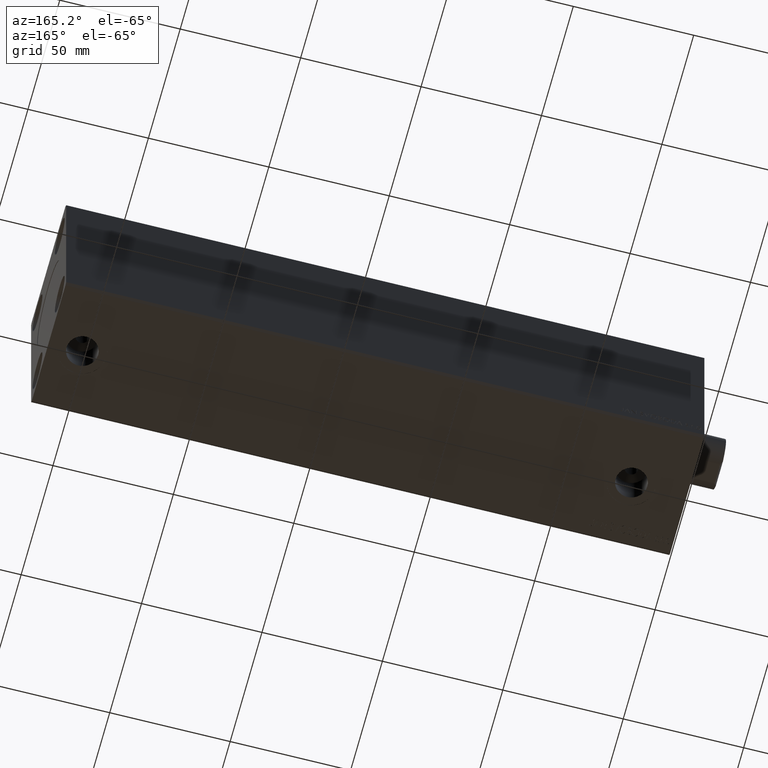
[diagram: clean part render]
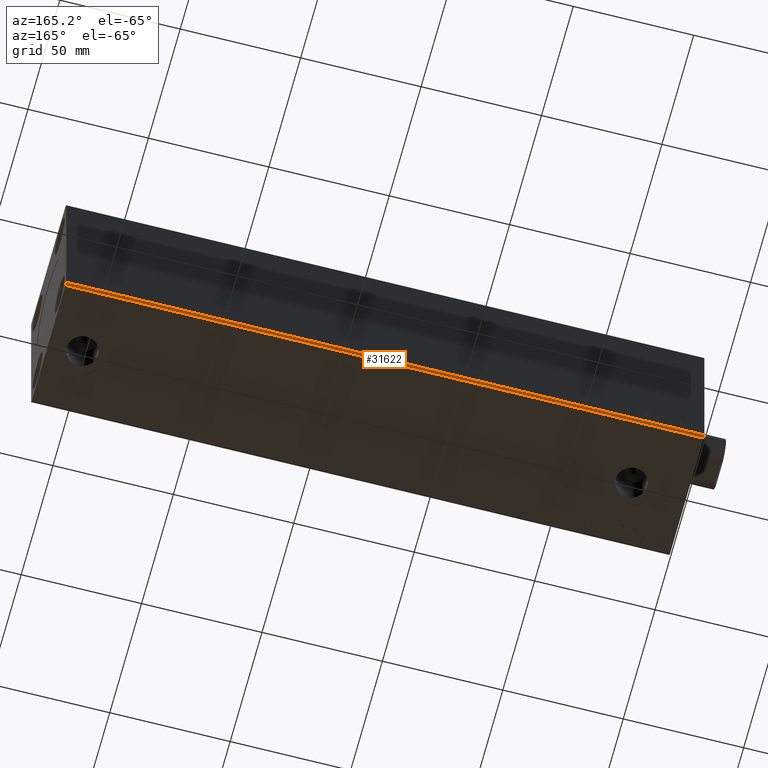
[diagram: same view with one face highlighted and labeled with its STEP entity id]
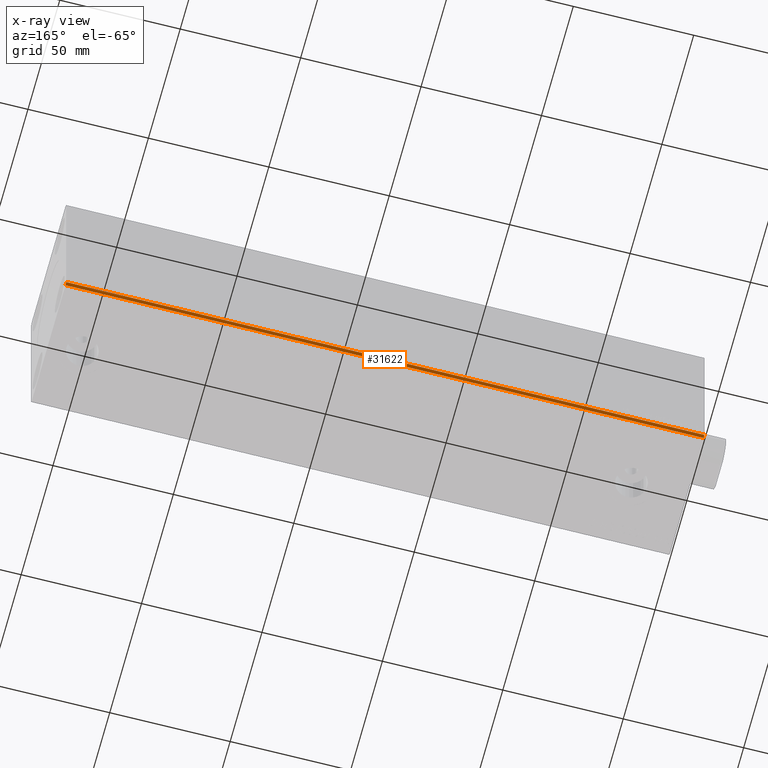
[diagram: x-ray of the same camera — body ghosted, the highlighted face saturated]
A machine part, auxiliary view. The second image highlights one B-rep face of the part: STEP entity #31622.
The next image is the same camera in x-ray: the body ghosted, the highlighted face saturated — about 0% of this face is hidden behind the body in this view.
In plain terms, the highlighted planar face has unit normal (0, -0.7071, 0.7071).
Its self-contained STEP definition (entity closure, byte-faithful):
#515 = EDGE_CURVE ( 'NONE', #31679, #7357, #35321, .T. ) ;
#568 = VECTOR ( 'NONE', #34080, 1000.000000000000000 ) ;
#800 = VERTEX_POINT ( 'NONE', #42394 ) ;
#1656 = CARTESIAN_POINT ( 'NONE',  ( 0.000000000000000000, 26.50000000000000711, -37.49999999999999289 ) ) ;
#2091 = LINE ( 'NONE', #1656, #44099 ) ;
#2786 = VERTEX_POINT ( 'NONE', #8434 ) ;
#3541 = CARTESIAN_POINT ( 'NONE',  ( 0.000000000000000000, 27.50000000000000711, -36.49999999999999289 ) ) ;
#3907 = DIRECTION ( 'NONE',  ( 0.000000000000000000, -0.7071067811865475727, 0.7071067811865475727 ) ) ;
#7357 = VERTEX_POINT ( 'NONE', #3541 ) ;
#7547 = ORIENTED_EDGE ( 'NONE', *, *, #21238, .T. ) ;
#7910 = CARTESIAN_POINT ( 'NONE',  ( 265.0000000000000000, 27.50000000000000711, -36.49999999999999289 ) ) ;
#8434 = CARTESIAN_POINT ( 'NONE',  ( 0.000000000000000000, 26.50000000000000711, -37.49999999999999289 ) ) ;
#9739 = LINE ( 'NONE', #27376, #568 ) ;
#10313 = EDGE_LOOP ( 'NONE', ( #19858, #22641, #34021, #7547 ) ) ;
#10819 = CARTESIAN_POINT ( 'NONE',  ( 265.0000000000000000, 26.50000000000000711, -37.49999999999999289 ) ) ;
#15436 = CARTESIAN_POINT ( 'NONE',  ( 265.0000000000000000, 26.50000000000000711, -37.49999999999999289 ) ) ;
#15797 = VECTOR ( 'NONE', #15852, 1000.000000000000114 ) ;
#15852 = DIRECTION ( 'NONE',  ( 0.000000000000000000, 0.7071067811865474617, 0.7071067811865474617 ) ) ;
#17958 = PLANE ( 'NONE',  #40632 ) ;
#19858 = ORIENTED_EDGE ( 'NONE', *, *, #23612, .T. ) ;
#21238 = EDGE_CURVE ( 'NONE', #800, #2786, #9739, .T. ) ;
#21531 = DIRECTION ( 'NONE',  ( 0.000000000000000000, -0.7071067811865474617, -0.7071067811865474617 ) ) ;
#21601 = VECTOR ( 'NONE', #28628, 1000.000000000000000 ) ;
#22641 = ORIENTED_EDGE ( 'NONE', *, *, #515, .F. ) ;
#23612 = EDGE_CURVE ( 'NONE', #2786, #7357, #2091, .T. ) ;
#27376 = CARTESIAN_POINT ( 'NONE',  ( 265.0000000000000000, 26.50000000000000711, -37.49999999999999289 ) ) ;
#28628 = DIRECTION ( 'NONE',  ( -1.000000000000000000, -0.000000000000000000, -0.000000000000000000 ) ) ;
#31622 = ADVANCED_FACE ( 'NONE', ( #40960 ), #17958, .F. ) ;
#31679 = VERTEX_POINT ( 'NONE', #7910 ) ;
#34021 = ORIENTED_EDGE ( 'NONE', *, *, #36453, .F. ) ;
#34080 = DIRECTION ( 'NONE',  ( -1.000000000000000000, -0.000000000000000000, -0.000000000000000000 ) ) ;
#35321 = LINE ( 'NONE', #39326, #21601 ) ;
#36234 = DIRECTION ( 'NONE',  ( 0.000000000000000000, 0.7071067811865474617, 0.7071067811865474617 ) ) ;
#36453 = EDGE_CURVE ( 'NONE', #800, #31679, #42856, .T. ) ;
#39326 = CARTESIAN_POINT ( 'NONE',  ( 265.0000000000000000, 27.50000000000000711, -36.49999999999999289 ) ) ;
#40632 = AXIS2_PLACEMENT_3D ( 'NONE', #10819, #3907, #21531 ) ;
#40960 = FACE_OUTER_BOUND ( 'NONE', #10313, .T. ) ;
#42394 = CARTESIAN_POINT ( 'NONE',  ( 265.0000000000000000, 26.50000000000000711, -37.49999999999999289 ) ) ;
#42856 = LINE ( 'NONE', #15436, #15797 ) ;
#44099 = VECTOR ( 'NONE', #36234, 1000.000000000000114 ) ;